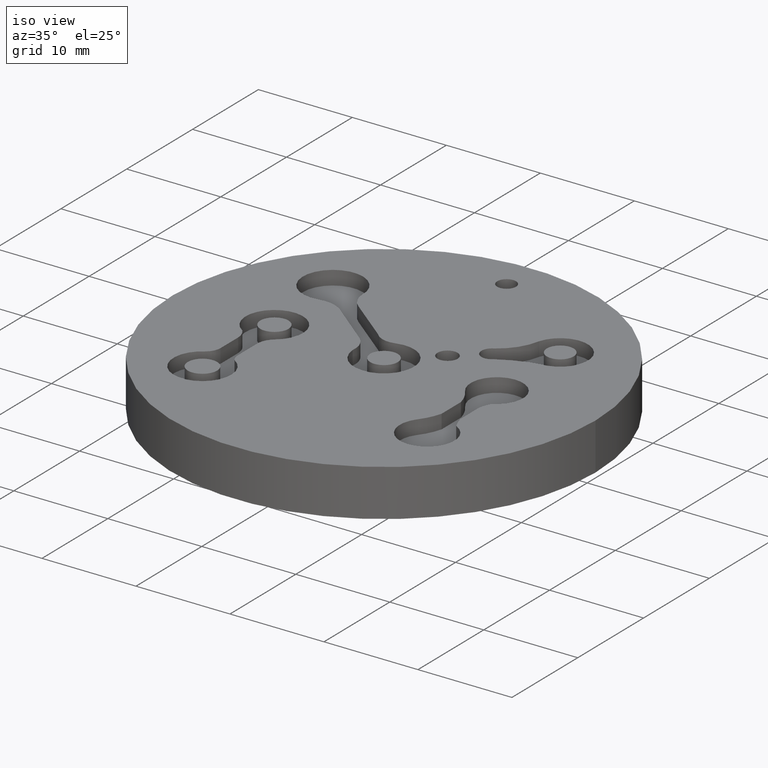
[diagram: clean part render]
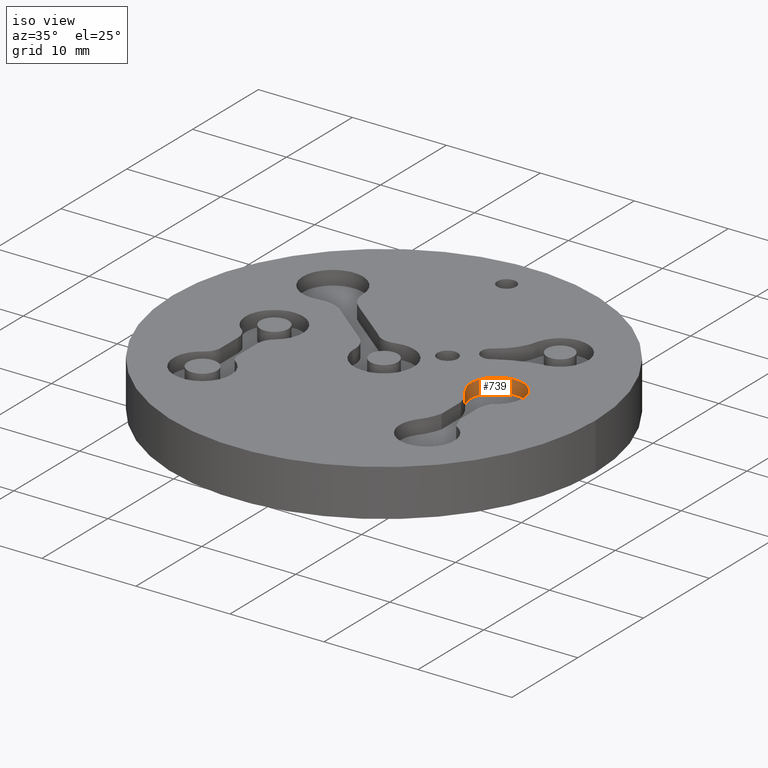
[diagram: same view with one face highlighted and labeled with its STEP entity id]
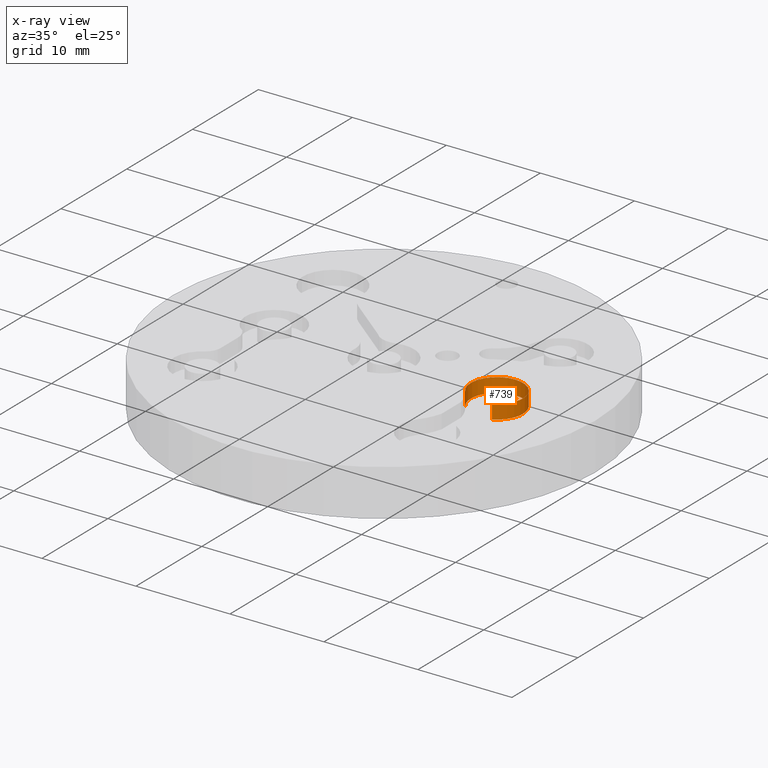
[diagram: x-ray of the same camera — body ghosted, the highlighted face saturated]
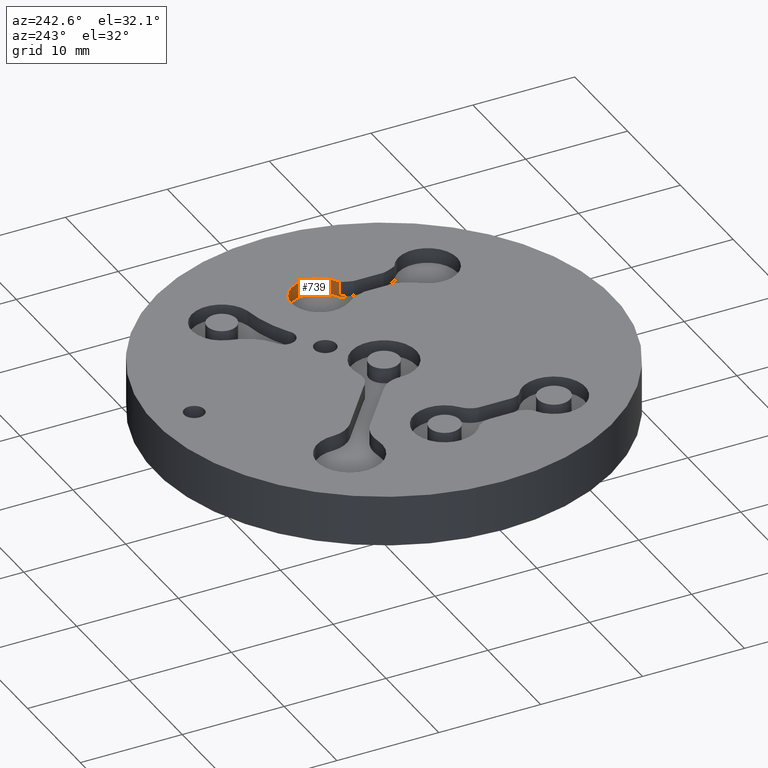
[diagram: same view with one face highlighted and labeled with its STEP entity id]
A machine part, iso view. The second image highlights one B-rep face of the part: STEP entity #739.
The next image is the same camera in x-ray: the body ghosted, the highlighted face saturated — about 0% of this face is hidden behind the body in this view.
A second angle (auxiliary view) of the same face is appended — the face is thin or edge-on in the first view.
In plain terms, the highlighted cylindrical surface (edge-blend (fillet) strip) has radius 2.78 mm, axis along (0, 0, 1).
Its self-contained STEP definition (entity closure, byte-faithful):
#70=FACE_OUTER_BOUND('',#118,.T.);
#118=EDGE_LOOP('',(#584,#585,#586,#587));
#168=LINE('',#1247,#215);
#178=LINE('',#1282,#225);
#215=VECTOR('',#1006,10.);
#225=VECTOR('',#1042,10.);
#280=CIRCLE('',#840,2.77997540433799);
#281=CIRCLE('',#841,2.77997540433799);
#333=VERTEX_POINT('',#1241);
#335=VERTEX_POINT('',#1245);
#346=VERTEX_POINT('',#1279);
#347=VERTEX_POINT('',#1281);
#422=EDGE_CURVE('',#333,#335,#168,.T.);
#439=EDGE_CURVE('',#346,#347,#178,.T.);
#441=EDGE_CURVE('',#333,#346,#280,.T.);
#442=EDGE_CURVE('',#335,#347,#281,.T.);
#584=ORIENTED_EDGE('',*,*,#441,.F.);
#585=ORIENTED_EDGE('',*,*,#422,.T.);
#586=ORIENTED_EDGE('',*,*,#442,.T.);
#587=ORIENTED_EDGE('',*,*,#439,.F.);
#703=CYLINDRICAL_SURFACE('',#839,2.77997540433799);
#739=ADVANCED_FACE('',(#70),#703,.F.);
#839=AXIS2_PLACEMENT_3D('',#1284,#1045,#1046);
#840=AXIS2_PLACEMENT_3D('',#1285,#1047,#1048);
#841=AXIS2_PLACEMENT_3D('',#1286,#1049,#1050);
#1006=DIRECTION('',(0.,0.,-1.));
#1042=DIRECTION('',(0.,0.,-1.));
#1045=DIRECTION('center_axis',(0.,0.,1.));
#1046=DIRECTION('ref_axis',(0.224351555518858,0.974508275765921,0.));
#1047=DIRECTION('center_axis',(0.,0.,-1.));
#1048=DIRECTION('ref_axis',(1.,0.,0.));
#1049=DIRECTION('center_axis',(0.,0.,-1.));
#1050=DIRECTION('ref_axis',(1.,0.,0.));
#1241=CARTESIAN_POINT('',(37.7942441222272,-11.1264737625374,0.));
#1245=CARTESIAN_POINT('',(37.7942441222272,-11.1264737625374,-1.5));
#1247=CARTESIAN_POINT('',(37.7942441222272,-11.1264737625374,0.));
#1279=CARTESIAN_POINT('',(41.1782865229008,-11.9055489078318,0.));
#1281=CARTESIAN_POINT('',(41.1782865229008,-11.9055489078318,-1.5));
#1282=CARTESIAN_POINT('',(41.1782865229008,-11.9055489078318,0.));
#1284=CARTESIAN_POINT('Origin',(39.9733504780566,-9.40027599324556,0.));
#1285=CARTESIAN_POINT('Origin',(39.9733504780566,-9.40027599324556,0.));
#1286=CARTESIAN_POINT('Origin',(39.9733504780566,-9.40027599324556,-1.5));